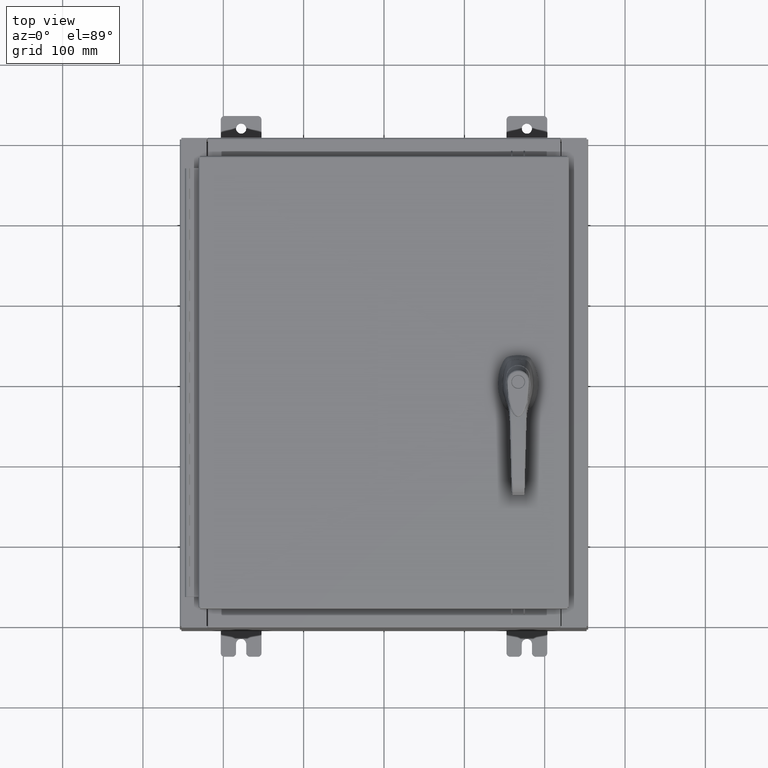
[diagram: clean part render]
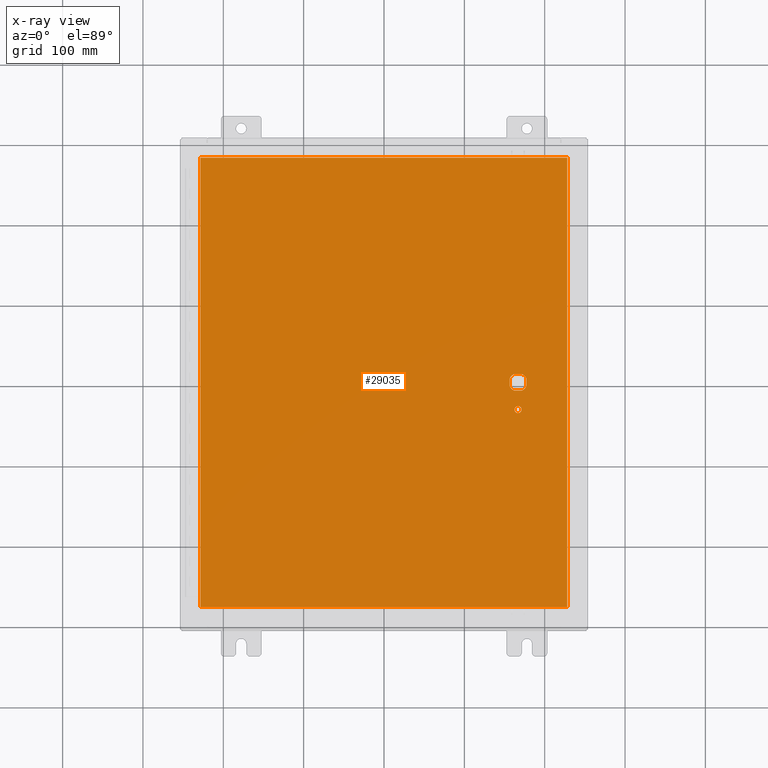
[diagram: x-ray — body ghosted, one internal face saturated and labeled with its STEP entity id]
A machine part, top view, then the same camera in x-ray: the body is ghosted and one INTERNAL B-rep face — a face not visible from any outside direction — is saturated and labeled: STEP entity #29035.
In plain terms, the highlighted planar face has unit normal (0, 0, -1).
Its self-contained STEP definition (entity closure, byte-faithful):
#326 = DIRECTION ( 'NONE',  ( -0.0000000000000000000, -0.0000000000000000000, 1.000000000000000000 ) ) ;
#1342 = VERTEX_POINT ( 'NONE', #42151 ) ;
#1494 = VERTEX_POINT ( 'NONE', #59924 ) ;
#1621 = LINE ( 'NONE', #100427, #65572 ) ;
#2653 = EDGE_CURVE ( 'NONE', #3231, #94691, #57517, .T. ) ;
#3199 = EDGE_CURVE ( 'NONE', #110366, #82476, #100032, .T. ) ;
#3231 = VERTEX_POINT ( 'NONE', #29811 ) ;
#4510 = AXIS2_PLACEMENT_3D ( 'NONE', #65670, #13256, #74453 ) ;
#5592 = EDGE_CURVE ( 'NONE', #1494, #69421, #84117, .T. ) ;
#7306 = CARTESIAN_POINT ( 'NONE',  ( 6.778227370756308500, -0.4029999999999252000, -0.07470000000000003000 ) ) ;
#7990 = CARTESIAN_POINT ( 'NONE',  ( 0.0000000000000000000, 0.0000000000000000000, -0.07470000000000000300 ) ) ;
#8515 = ORIENTED_EDGE ( 'NONE', *, *, #23185, .T. ) ;
#9660 = AXIS2_PLACEMENT_3D ( 'NONE', #53609, #37074, #27517 ) ;
#12480 = FACE_BOUND ( 'NONE', #58078, .T. ) ;
#13256 = DIRECTION ( 'NONE',  ( -0.0000000000000000000, -0.0000000000000000000, 1.000000000000000000 ) ) ;
#15971 = ORIENTED_EDGE ( 'NONE', *, *, #2653, .T. ) ;
#17282 = AXIS2_PLACEMENT_3D ( 'NONE', #94107, #41597, #102969 ) ;
#17577 = EDGE_CURVE ( 'NONE', #3231, #55710, #87124, .T. ) ;
#19760 = EDGE_LOOP ( 'NONE', ( #102987, #31800, #45104, #78974 ) ) ;
#20259 = VERTEX_POINT ( 'NONE', #22239 ) ;
#21145 = AXIS2_PLACEMENT_3D ( 'NONE', #7990, #34366, #95698 ) ;
#21845 = DIRECTION ( 'NONE',  ( 0.0000000000000000000, 1.000000000000000000, 0.0000000000000000000 ) ) ;
#22239 = CARTESIAN_POINT ( 'NONE',  ( 8.990299999999997700, -11.00630000000000000, -0.07470000000000000300 ) ) ;
#22310 = DIRECTION ( 'NONE',  ( -1.000000000000000000, 0.0000000000000000000, 0.0000000000000000000 ) ) ;
#22896 = ORIENTED_EDGE ( 'NONE', *, *, #17577, .F. ) ;
#23185 = EDGE_CURVE ( 'NONE', #93360, #55710, #24126, .T. ) ;
#24126 = CIRCLE ( 'NONE', #53134, 0.4499999999999156900 ) ;
#24269 = LINE ( 'NONE', #110897, #91466 ) ;
#24494 = CARTESIAN_POINT ( 'NONE',  ( -8.990299999999999500, 11.00630000000000100, -0.07470000000000019700 ) ) ;
#24799 = CARTESIAN_POINT ( 'NONE',  ( 6.980999999999924400, -0.2002273707563080300, -0.07470000000000003000 ) ) ;
#25778 = DIRECTION ( 'NONE',  ( -1.000000000000000000, -0.0000000000000000000, -0.0000000000000000000 ) ) ;
#27376 = LINE ( 'NONE', #75103, #73904 ) ;
#27517 = DIRECTION ( 'NONE',  ( -1.000000000000000000, 0.0000000000000000000, 0.0000000000000000000 ) ) ;
#27954 = CARTESIAN_POINT ( 'NONE',  ( 6.980999999999924400, 0.0000000000000000000, -0.07470000000000003000 ) ) ;
#29035 = ADVANCED_FACE ( 'NONE', ( #103036, #38482, #12480 ), #103829, .T. ) ;
#29811 = CARTESIAN_POINT ( 'NONE',  ( 6.980999999999924400, 0.2002273707563080300, -0.07470000000000003000 ) ) ;
#30250 = CARTESIAN_POINT ( 'NONE',  ( 0.0000000000000000000, -0.4029999999999252000, -0.07470000000000003000 ) ) ;
#31800 = ORIENTED_EDGE ( 'NONE', *, *, #108299, .F. ) ;
#33215 = CARTESIAN_POINT ( 'NONE',  ( 8.990299999999997700, 11.00630000000000000, -0.07470000000000000300 ) ) ;
#34366 = DIRECTION ( 'NONE',  ( 0.0000000000000000000, 0.0000000000000000000, -1.000000000000000000 ) ) ;
#35419 = ORIENTED_EDGE ( 'NONE', *, *, #73637, .T. ) ;
#37000 = DIRECTION ( 'NONE',  ( -1.000000000000000000, 8.881784197001256300E-016, 0.0000000000000000000 ) ) ;
#37074 = DIRECTION ( 'NONE',  ( -0.0000000000000000000, -0.0000000000000000000, 1.000000000000000000 ) ) ;
#37138 = ORIENTED_EDGE ( 'NONE', *, *, #42180, .T. ) ;
#37666 = EDGE_CURVE ( 'NONE', #94691, #79984, #27376, .T. ) ;
#38202 = VERTEX_POINT ( 'NONE', #91172 ) ;
#38482 = FACE_OUTER_BOUND ( 'NONE', #19760, .T. ) ;
#41597 = DIRECTION ( 'NONE',  ( -0.0000000000000000000, -0.0000000000000000000, 1.000000000000000000 ) ) ;
#42151 = CARTESIAN_POINT ( 'NONE',  ( 6.175000000000072700, 0.2002273707563080300, -0.07470000000000003000 ) ) ;
#42180 = EDGE_CURVE ( 'NONE', #82476, #93360, #59230, .T. ) ;
#44888 = DIRECTION ( 'NONE',  ( 0.0000000000000000000, -1.000000000000000000, 0.0000000000000000000 ) ) ;
#45104 = ORIENTED_EDGE ( 'NONE', *, *, #5592, .F. ) ;
#48244 = DIRECTION ( 'NONE',  ( 1.000000000000000000, 0.0000000000000000000, 0.0000000000000000000 ) ) ;
#50819 = DIRECTION ( 'NONE',  ( -0.0000000000000000000, -0.0000000000000000000, 1.000000000000000000 ) ) ;
#51791 = VERTEX_POINT ( 'NONE', #83208 ) ;
#52869 = CARTESIAN_POINT ( 'NONE',  ( 6.577999999999998500, 0.0000000000000000000, -0.07470000000000003000 ) ) ;
#53134 = AXIS2_PLACEMENT_3D ( 'NONE', #52869, #326, #61600 ) ;
#53327 = VECTOR ( 'NONE', #44888, 39.37007874015748100 ) ;
#53609 = CARTESIAN_POINT ( 'NONE',  ( 6.577999999999998500, 0.0000000000000000000, -0.07470000000000003000 ) ) ;
#53634 = DIRECTION ( 'NONE',  ( -0.0000000000000000000, -0.0000000000000000000, 1.000000000000000000 ) ) ;
#53714 = VERTEX_POINT ( 'NONE', #33215 ) ;
#55710 = VERTEX_POINT ( 'NONE', #24799 ) ;
#57004 = CIRCLE ( 'NONE', #17282, 0.1715000000000000700 ) ;
#57383 = EDGE_CURVE ( 'NONE', #20259, #53714, #1621, .T. ) ;
#57517 = CIRCLE ( 'NONE', #9660, 0.4499999999999156900 ) ;
#58078 = EDGE_LOOP ( 'NONE', ( #8515, #22896, #15971, #98777, #73801, #67467, #91189, #37138 ) ) ;
#59230 = LINE ( 'NONE', #30250, #103217 ) ;
#59924 = CARTESIAN_POINT ( 'NONE',  ( -8.990299999999999500, 11.00630000000000000, -0.07470000000000000300 ) ) ;
#61600 = DIRECTION ( 'NONE',  ( -1.000000000000000000, 0.0000000000000000000, 0.0000000000000000000 ) ) ;
#61978 = CIRCLE ( 'NONE', #4510, 0.4499999999999156900 ) ;
#63144 = DIRECTION ( 'NONE',  ( 0.0000000000000000000, -1.000000000000000000, 0.0000000000000000000 ) ) ;
#63743 = VECTOR ( 'NONE', #63144, 39.37007874015748100 ) ;
#65572 = VECTOR ( 'NONE', #21845, 39.37007874015748100 ) ;
#65670 = CARTESIAN_POINT ( 'NONE',  ( 6.577999999999998500, 0.0000000000000000000, -0.07470000000000003000 ) ) ;
#65753 = VECTOR ( 'NONE', #25778, 39.37007874015748100 ) ;
#67128 = DIRECTION ( 'NONE',  ( 0.0000000000000000000, -1.000000000000000000, 0.0000000000000000000 ) ) ;
#67467 = ORIENTED_EDGE ( 'NONE', *, *, #69945, .T. ) ;
#67585 = AXIS2_PLACEMENT_3D ( 'NONE', #103344, #50819, #112105 ) ;
#69421 = VERTEX_POINT ( 'NONE', #79769 ) ;
#69945 = EDGE_CURVE ( 'NONE', #1342, #110366, #99950, .T. ) ;
#73637 = EDGE_CURVE ( 'NONE', #38202, #51791, #57004, .T. ) ;
#73801 = ORIENTED_EDGE ( 'NONE', *, *, #82132, .T. ) ;
#73904 = VECTOR ( 'NONE', #22310, 39.37007874015748100 ) ;
#74136 = AXIS2_PLACEMENT_3D ( 'NONE', #79959, #53634, #37000 ) ;
#74453 = DIRECTION ( 'NONE',  ( -1.000000000000000000, 0.0000000000000000000, 0.0000000000000000000 ) ) ;
#75103 = CARTESIAN_POINT ( 'NONE',  ( 0.0000000000000000000, 0.4029999999999252000, -0.07470000000000003000 ) ) ;
#78974 = ORIENTED_EDGE ( 'NONE', *, *, #105325, .F. ) ;
#79769 = CARTESIAN_POINT ( 'NONE',  ( -8.990299999999997700, -11.00630000000000100, -0.07470000000000000300 ) ) ;
#79959 = CARTESIAN_POINT ( 'NONE',  ( 6.577999999999998500, 0.0000000000000000000, -0.07470000000000003000 ) ) ;
#79984 = VERTEX_POINT ( 'NONE', #110700 ) ;
#81348 = VECTOR ( 'NONE', #67128, 39.37007874015748100 ) ;
#82132 = EDGE_CURVE ( 'NONE', #79984, #1342, #61978, .T. ) ;
#82476 = VERTEX_POINT ( 'NONE', #82782 ) ;
#82782 = CARTESIAN_POINT ( 'NONE',  ( 6.377772629243688500, -0.4029999999999250300, -0.07470000000000003000 ) ) ;
#83208 = CARTESIAN_POINT ( 'NONE',  ( 6.749499999999998500, -1.338000000000000100, -0.07470000000000003000 ) ) ;
#84117 = LINE ( 'NONE', #24494, #81348 ) ;
#87113 = CARTESIAN_POINT ( 'NONE',  ( 8.990299999999999500, 11.00630000000000000, -0.07470000000000019700 ) ) ;
#87124 = LINE ( 'NONE', #27954, #63743 ) ;
#88700 = CARTESIAN_POINT ( 'NONE',  ( 6.778227370756308500, 0.4029999999999250300, -0.07470000000000003000 ) ) ;
#89397 = CARTESIAN_POINT ( 'NONE',  ( 6.175000000000072700, -0.2002273707563079800, -0.07470000000000003000 ) ) ;
#91172 = CARTESIAN_POINT ( 'NONE',  ( 6.406499999999998500, -1.338000000000000100, -0.07470000000000003000 ) ) ;
#91189 = ORIENTED_EDGE ( 'NONE', *, *, #3199, .T. ) ;
#91466 = VECTOR ( 'NONE', #102138, 39.37007874015748100 ) ;
#92002 = CIRCLE ( 'NONE', #67585, 0.1715000000000000700 ) ;
#93360 = VERTEX_POINT ( 'NONE', #7306 ) ;
#93933 = EDGE_LOOP ( 'NONE', ( #104314, #35419 ) ) ;
#94107 = CARTESIAN_POINT ( 'NONE',  ( 6.577999999999998500, -1.338000000000000100, -0.07470000000000003000 ) ) ;
#94558 = EDGE_CURVE ( 'NONE', #51791, #38202, #92002, .T. ) ;
#94691 = VERTEX_POINT ( 'NONE', #88700 ) ;
#95698 = DIRECTION ( 'NONE',  ( -1.000000000000000000, 0.0000000000000000000, -0.0000000000000000000 ) ) ;
#98777 = ORIENTED_EDGE ( 'NONE', *, *, #37666, .T. ) ;
#99950 = LINE ( 'NONE', #106215, #53327 ) ;
#100032 = CIRCLE ( 'NONE', #74136, 0.4499999999999156900 ) ;
#100427 = CARTESIAN_POINT ( 'NONE',  ( 8.990299999999997700, -11.00630000000000000, -0.07470000000000021100 ) ) ;
#102138 = DIRECTION ( 'NONE',  ( 1.000000000000000000, -0.0000000000000000000, -0.0000000000000000000 ) ) ;
#102969 = DIRECTION ( 'NONE',  ( -1.000000000000000000, 0.0000000000000000000, 0.0000000000000000000 ) ) ;
#102987 = ORIENTED_EDGE ( 'NONE', *, *, #57383, .F. ) ;
#103036 = FACE_BOUND ( 'NONE', #93933, .T. ) ;
#103217 = VECTOR ( 'NONE', #48244, 39.37007874015748100 ) ;
#103344 = CARTESIAN_POINT ( 'NONE',  ( 6.577999999999998500, -1.338000000000000100, -0.07470000000000003000 ) ) ;
#103829 = PLANE ( 'NONE',  #21145 ) ;
#104314 = ORIENTED_EDGE ( 'NONE', *, *, #94558, .T. ) ;
#105325 = EDGE_CURVE ( 'NONE', #53714, #1494, #109684, .T. ) ;
#106215 = CARTESIAN_POINT ( 'NONE',  ( 6.175000000000072700, 0.0000000000000000000, -0.07470000000000003000 ) ) ;
#108299 = EDGE_CURVE ( 'NONE', #69421, #20259, #24269, .T. ) ;
#109684 = LINE ( 'NONE', #87113, #65753 ) ;
#110366 = VERTEX_POINT ( 'NONE', #89397 ) ;
#110700 = CARTESIAN_POINT ( 'NONE',  ( 6.377772629243688500, 0.4029999999999252000, -0.07470000000000003000 ) ) ;
#110897 = CARTESIAN_POINT ( 'NONE',  ( -8.990300000000001300, -11.00630000000000100, -0.07469999999999910000 ) ) ;
#112105 = DIRECTION ( 'NONE',  ( -1.000000000000000000, 0.0000000000000000000, 0.0000000000000000000 ) ) ;